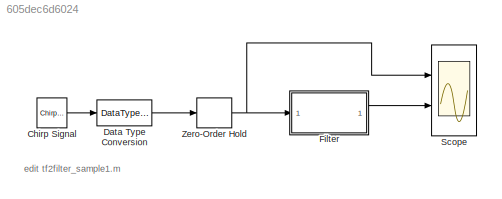
MODEL slx_605dec6d6024
KIND model
CONFIG AbsTol = auto
CONFIG FixedStep = auto
CONFIG MaxStep = auto
CONFIG MinStep = auto
CONFIG RelTol = 1e-3
CONFIG SampleTimeConstraint = Unconstrained
CONFIG Solver = FixedStepDiscrete
CONFIG SolverMode = SingleTasking
CONFIG SolverName = FixedStepDiscrete
CONFIG StartTime = 0.0
CONFIG StopTime = 10.0
BLOCK [Reference] Chirp Signal  REF=simulink/Sources/Chirp Signal
  Ports = [0, 1]
  SourceBlock = simulink/Sources/Chirp Signal
  SourceType = chirp
BLOCK [DataTypeConversion] Data Type Conversion
  OutDataTypeStr = fixdt(1,16,14)
  RndMeth = Nearest
  SaturateOnIntegerOverflow = off
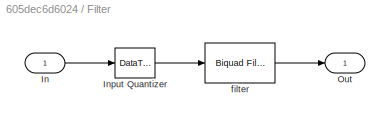
BLOCK [SubSystem] Filter
  Ports = [1, 1]
  RequestExecContextInheritance = off
  Tag = BlockMethodSubSystem
  Variant = off
BLOCK [Inport] Filter/In
  IconDisplay = Port number
BLOCK [DataTypeConversion] Filter/Input Quantizer
  OutDataTypeStr = fixdt(1,16,14)
  RndMeth = Round
BLOCK [Outport] Filter/Out
  IconDisplay = Port number
BLOCK [Reference] Filter/filter  REF=dsparch4/Biquad Filter
  Ports = [1, 1]
  SourceBlock = dsparch4/Biquad Filter
  SourceType = Biquad Filter
  UserDataPersistent = on
BLOCK [Scope] Scope
  NumInputPorts = 2
  Ports = [2]
  ScopeSpecificationString = Simulink.scopes.TimeScopeBlockCfg('CurrentConfiguration', extmgr.ConfigurationSet(extmgr.Configuration('Core','General UI',true),extmgr.Configuration('Core','Source UI',true),extmgr.Configuration('Sources','WiredSimulink',true,'DataLoggingSaveFormat','StructureWithTime','DataLoggingDecimation','1','DataLoggingDecimateData',true),extmgr.Configuration('Visuals','Time Domain',true,'SerializedDisplays...<+2377ch>
BLOCK [ZeroOrderHold] Zero-Order Hold
  SampleTime = 1/1000
ANNOTATION (root): edit tf2filter_sample1.m
LINE Chirp Signal:1 -> Data Type Conversion:1
LINE Data Type Conversion:1 -> Zero-Order Hold:1
LINE Filter/In:1 -> Filter/Input Quantizer:1
LINE Filter/Input Quantizer:1 -> Filter/filter:1
LINE Filter/filter:1 -> Filter/Out:1
LINE Filter:1 -> Scope:2
NET Zero-Order Hold:1 -> Filter:1, Scope:1
note: NET lines group one-source signal fan-out (src -> all destinations, sorted); 1:1 wires keep LINE
